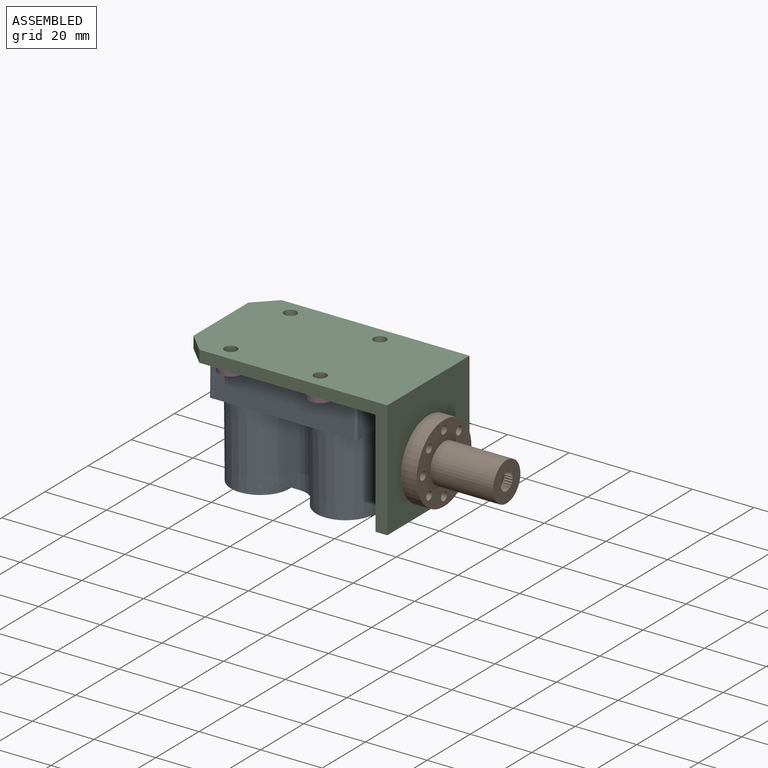
[diagram: assembled view]
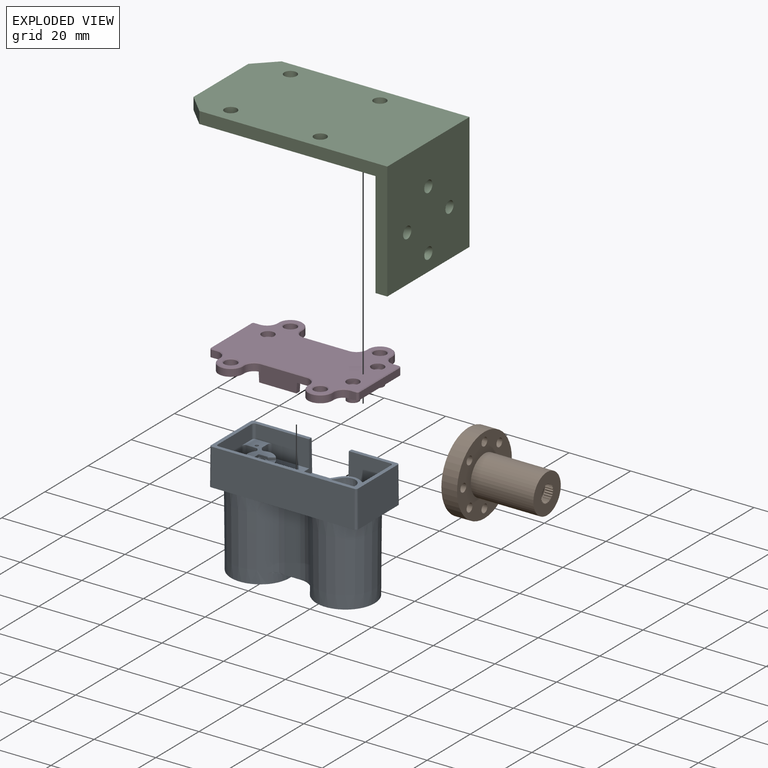
[diagram: exploded view]
GUIDED TOUR — MATED ASSEMBLY (Onshape document ed77f4d7c9192865d4ffb12d, AutoMate assembly ed77f4d7c9192865d4ffb12d_d418b81e3465ae56b3d276f0_4f85dbb0df56c0d508971a54_default)

This assembly has 4 components, labeled P0..P3 below (a component is one placed occurrence of a part; the same part can appear more than once), held together by 7 mates. A mate is a constraint between two components; its type names the relative motion it leaves free:
  CYLINDRICAL — leaves both rotation about and translation along the listed axis free,
  FASTENED — locks the two components together rigidly (no relative motion),
  PLANAR — leaves sliding in the plane through the listed point (normal = the listed direction) and rotation about that normal free.
Axis/direction vectors are unit vectors and 'through' points are millimeter coordinates, both in the assembly's world frame.

MATES
  1. PLANAR "Planar 1": P2 <-> P3, direction (0.000, 0.000, -1.000) through (-71.48, -67.20, 4.87) mm
  2. PLANAR "Planar 2": P1 <-> P2, direction (-1.000, 0.000, 0.000) through (-36.53, -67.20, -14.18) mm
  3. CYLINDRICAL "Cylindrical 1": P2 <-> P3, axis (0.000, 0.000, 1.000) through (-90.97, -81.02, 4.87) mm
  4. CYLINDRICAL "Cylindrical 2": P3 <-> P2, axis (0.000, 0.000, -1.000) through (-61.93, -53.38, 4.62) mm
  5. CYLINDRICAL "Cylindrical 4": P2 <-> P1, axis (1.000, 0.000, 0.000) through (-36.53, -67.20, -23.95) mm
  6. FASTENED "Fastened 1": P0 <-> P3, direction (0.000, 0.000, 1.000) through (-100.58, -67.20, 2.33) mm
  7. CYLINDRICAL "Cylindrical 3": P1 <-> P2, axis (-1.000, 0.000, 0.000) through (-36.53, -67.20, -4.40) mm

ASSEMBLY ORDER
  1. P3 — the base component [order verified]
  2. P2 [order verified]
  3. P0 [order verified]
  4. P1 [order verified]
Order-tag legend:
  [order verified] — this step's position reverses a verified removal order: the component was checked to insert without passing through the ones already placed.

Of the 4 components, 1 carries the full construction recipe — the FeatureScript program that regenerates the part's solid from scratch; the rest are supplied as boundary geometry only.
Each toured component is shown spotlighted twice — in the assembled view, then in the exploded view, where a leader line traces a displaced component back to its assembled socket (saturated green if recipe-attached, orange if geometry-only; every other component desaturated gray) — followed by its recipe or geometry summary and the mates that hold it.
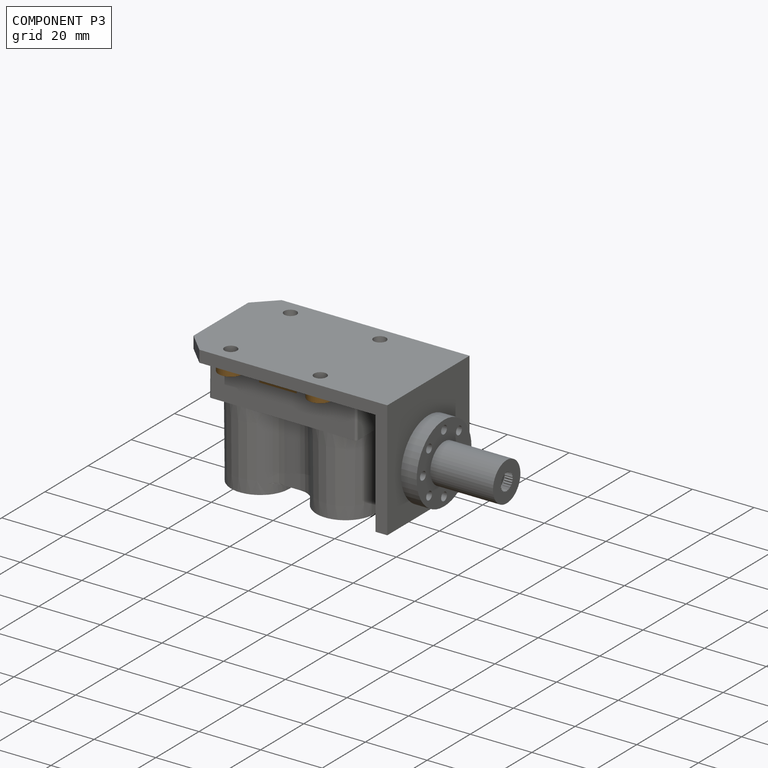
[diagram: component P3 — assembled]
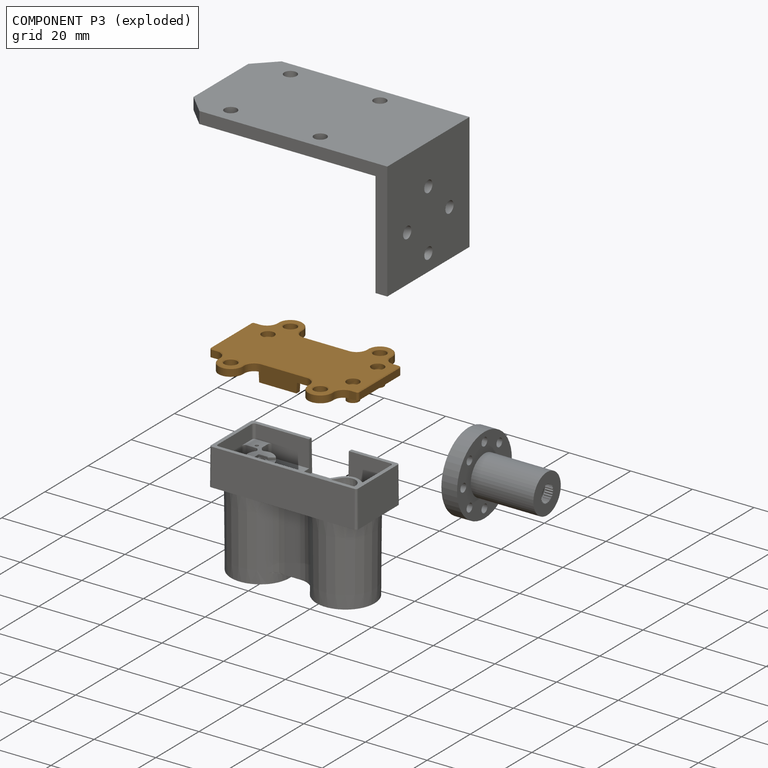
[diagram: component P3 — exploded]
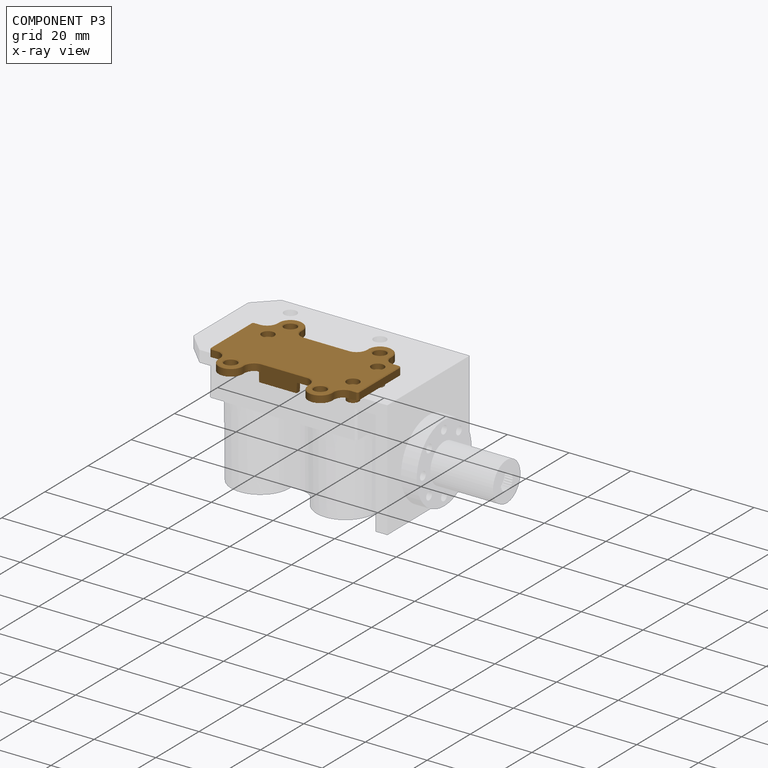
[diagram: component P3 — x-ray view]
COMPONENT P3 — geometry summary (no construction recipe available for this part):
  bounding box: 48.3 x 35.6 x 5.7 mm
  B-rep topology: 1 solid, 181 faces, 964 edges
  volume: 2464 mm^3 (25% of its bounding box)
Held by: PLANAR mate "Planar 1" to P2; CYLINDRICAL mate "Cylindrical 1" to P2; CYLINDRICAL mate "Cylindrical 2" to P2; FASTENED mate "Fastened 1" to P0.
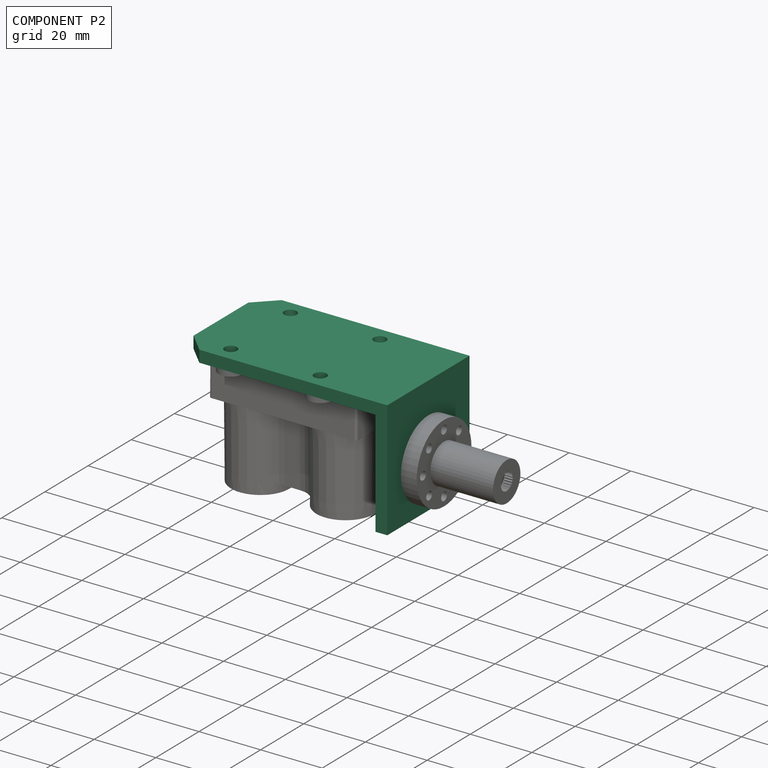
[diagram: component P2 — assembled]
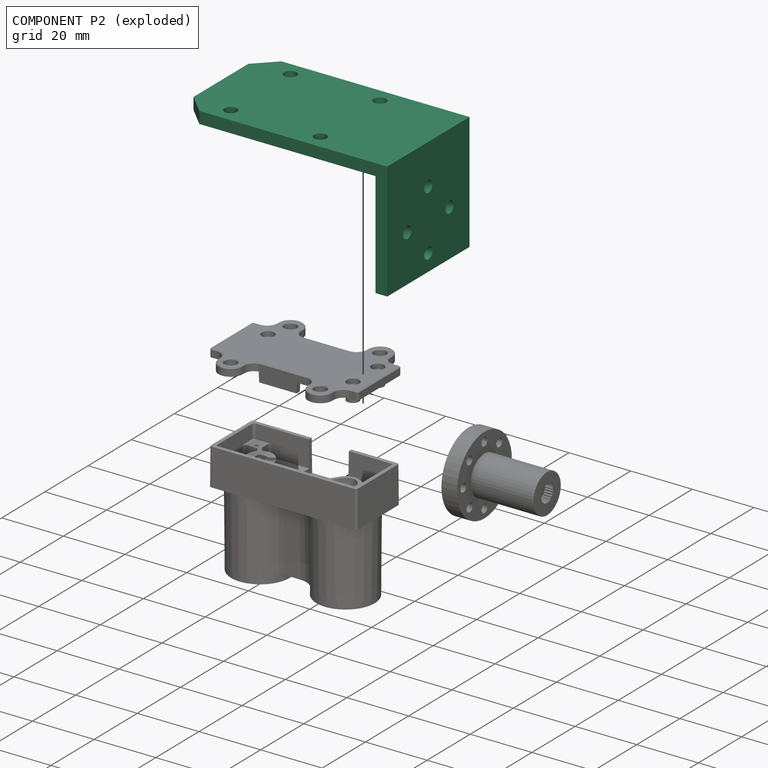
[diagram: component P2 — exploded]
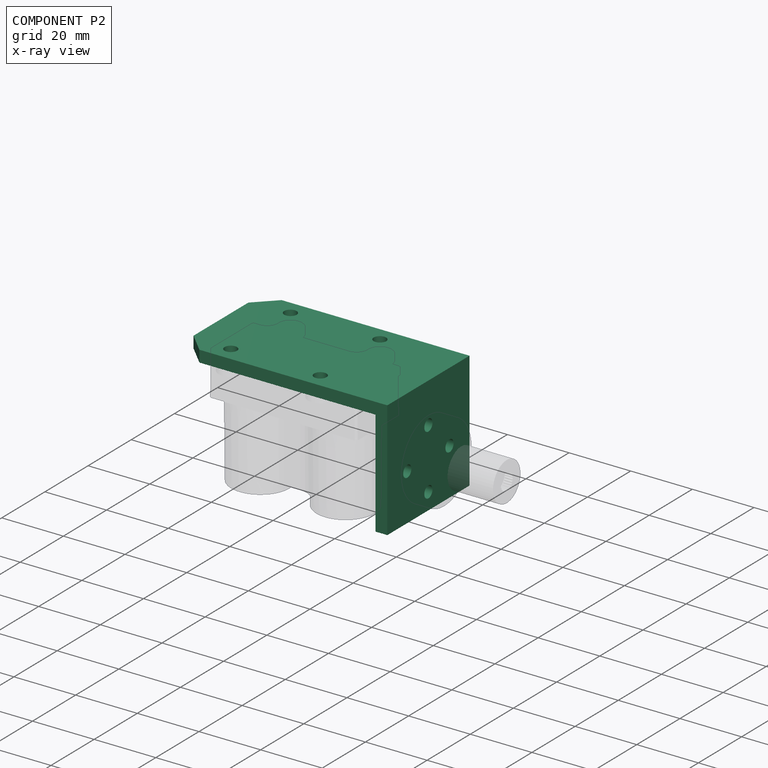
[diagram: component P2 — x-ray view]
COMPONENT P2 — recipe-attached (CADFS 00296645, mesh-verified: the recipe's output STEP matches this component's geometry to below the mesh-comparison resolution (tessellation chordal tolerance ~0.129 mm)).
Held by: PLANAR mate "Planar 1" to P3; PLANAR mate "Planar 2" to P1; CYLINDRICAL mate "Cylindrical 1" to P3; CYLINDRICAL mate "Cylindrical 2" to P3; CYLINDRICAL mate "Cylindrical 4" to P1; CYLINDRICAL mate "Cylindrical 3" to P1.
Construction recipe (FeatureScript — the CAD program that rebuilds this solid; sketch coordinates are in the units given by the * unit suffixes, e.g. mm):

FeatureScript 1511;
import(path : "onshape/std/geometry.fs", version : "1511.0");
import(path : "onshape/std/common.fs", version : "1511.0");
const mm = millimeter;
const VERTEX = EntityType.VERTEX;
const EDGE = EntityType.EDGE;
const FACE = EntityType.FACE;
const BODY = EntityType.BODY;
function v(x, y){return vector(x, y);}
function OD(order){return orderDisambiguation(order);}
function OSD(set){return originalSetDisambiguation(set);}
function TD(topology){return topologyDisambiguation(topology);}
function TDD(query){return trueDependencyDisambiguation(query);}
function sQuery(a, b, c) {return sketchEntityQuery(a, b, c);}

annotation { "Feature Type Name" : "Feature", "Feature Type Description" : "" }
export const myFeature = defineFeature(function(context is Context, id is Id, definition is map)
    precondition{}
    {
        {
            var Q0;
            Q0=qCreatedBy(makeId("Front.planeOp"),FACE);
            var sketch = newSketch(context, id + "F0", { "sketchPlane" : qUnion([Q0])});
            skLineSegment(sketch, "E0", {"start": v(0, 19.05) * mm, "end": v(-57.15, 19.05) * mm});
            skLineSegment(sketch, "E1", {"start": v(-57.15, 19.05) * mm, "end": v(-63.5, 12.7) * mm});
            skLineSegment(sketch, "E2", {"start": v(-63.5, 12.7) * mm, "end": v(-63.5, 0) * mm});
            skLineSegment(sketch, "E3.bottom", {"start": v(0, 19.05) * mm, "end": v(3.81, 19.05) * mm});
            skLineSegment(sketch, "E3.left", {"start": v(0, 19.05) * mm, "end": v(0, 0) * mm});
            skLineSegment(sketch, "E3.right", {"start": v(3.8, 19.05) * mm, "end": v(3.81, 0) * mm});
            skCircle(sketch, "E4", {"center": v(-50.62, 13.82) * mm, "radius": 2.02 * mm});
            skCircle(sketch, "E5", {"center": v(-21.59, 13.82) * mm, "radius": 2.02 * mm});
            skCircle(sketch, "E6.MirrorC", {"center": v(-21.59, -13.82) * mm, "radius": 2.02 * mm});
            skLineSegment(sketch, "E7.MirrorCS", {"start": v(-57.15, -19.05) * mm, "end": v(-63.5, -12.7) * mm});
            skCircle(sketch, "E8.MirrorC", {"center": v(-50.62, -13.82) * mm, "radius": 2.02 * mm});
            skLineSegment(sketch, "E9.MirrorCS", {"start": v(0, -19.05) * mm, "end": v(-57.15, -19.05) * mm});
            skLineSegment(sketch, "E10.MirrorCS", {"start": v(3.8, -19.05) * mm, "end": v(3.81, 0) * mm});
            skLineSegment(sketch, "E11.MirrorCS", {"start": v(0, -19.05) * mm, "end": v(3.81, -19.05) * mm});
            skLineSegment(sketch, "E12.MirrorCS", {"start": v(0, -19.05) * mm, "end": v(0, 0) * mm});
            skLineSegment(sketch, "E13.MirrorCS", {"start": v(-63.5, -12.7) * mm, "end": v(-63.5, 0) * mm});
            skSolve(sketch);
        }
        {
            var Q0;
            Q0=makeQuery(id+"F0.imprint","IMPRINT",FACE,{"disambiguationData":[TD([[makeQuery(id+"F0.imprint","IMPRINT",EDGE,{"derivedFrom":sQuery(id+"F0.wireOp",EDGE,"E0")}),1.0]])]});
            extrude(context, id + "F1", {"entities" : qUnion([Q0]), "depth" : 3.8 * mm});
        }
        {
            var Q0;
            Q0=makeQuery(id+"F0.imprint","IMPRINT",FACE,{"disambiguationData":[TD([[makeQuery(id+"F0.imprint","IMPRINT",EDGE,{"derivedFrom":sQuery(id+"F0.wireOp",EDGE,"E3.bottom")}),-1.0]])]});
            extrude(context, id + "F2", {"entities" : qUnion([Q0]), "operationType" : NewBodyOperationType.ADD, "depth" : 38.1 * mm});
        }
        {
            var Q0;
            Q0=makeQuery(id+"F2.opExtrude","SWEPT_FACE",FACE,{"disambiguationData":[OSD([sQuery(id+"F0.wireOp",EDGE,"E3.right"),sQuery(id+"F0.wireOp",EDGE,"E10.MirrorCS")])]});
            var sketch = newSketch(context, id + "F3", { "sketchPlane" : qUnion([Q0])});
            skPoint(sketch, "E14", {"position": v(-22.86, 0) * mm});
            skCircle(sketch, "E15", {"center": v(-22.86, 0) * mm, "radius": 9.78 * mm, "construction": true});
            skCircle(sketch, "E16", {"center": v(-22.86, 9.78) * mm, "radius": 1.9 * mm});
            skCircle(sketch, "E17.MirrorC", {"center": v(-22.86, -9.78) * mm, "radius": 1.9 * mm});
            skCircle(sketch, "E18", {"center": v(-32.64, 0) * mm, "radius": 1.9 * mm});
            skLineSegment(sketch, "E19", {"start": v(-22.86, 9.78) * mm, "end": v(-22.86, -9.78) * mm, "construction": true});
            skCircle(sketch, "E20.MirrorC", {"center": v(-13.08, 0) * mm, "radius": 1.9 * mm});
            skSolve(sketch);
        }
        {
            var Q0;
            Q0 = qSketchRegion(id + "F3", true);
            extrude(context, id + "F4", {"entities" : qUnion([Q0]), "operationType" : NewBodyOperationType.REMOVE, "endBound" : BoundingType.THROUGH_ALL, "oppositeDirection" : true, "depth" : 25.4 * mm});
        }
    });
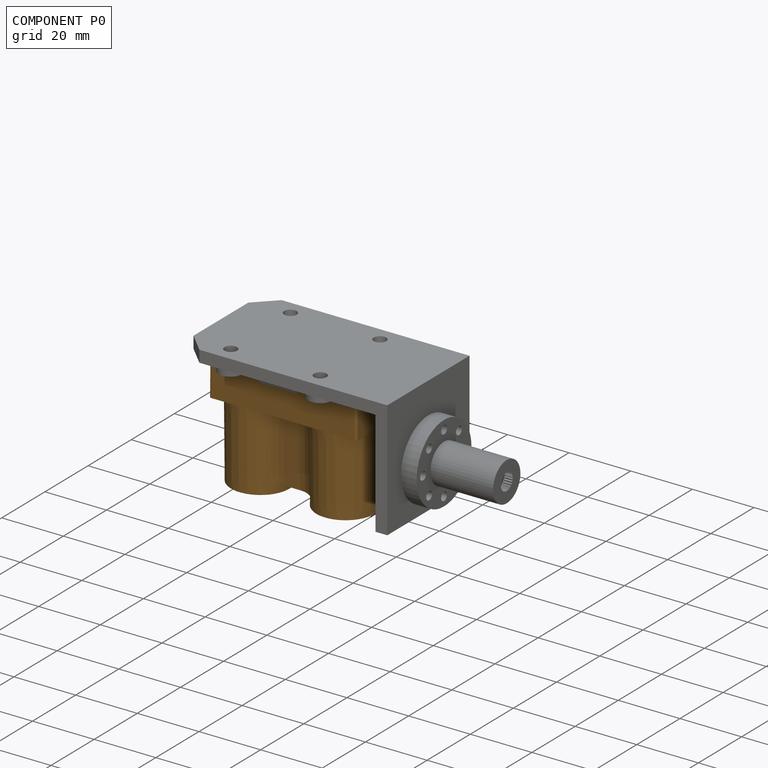
[diagram: component P0 — assembled]
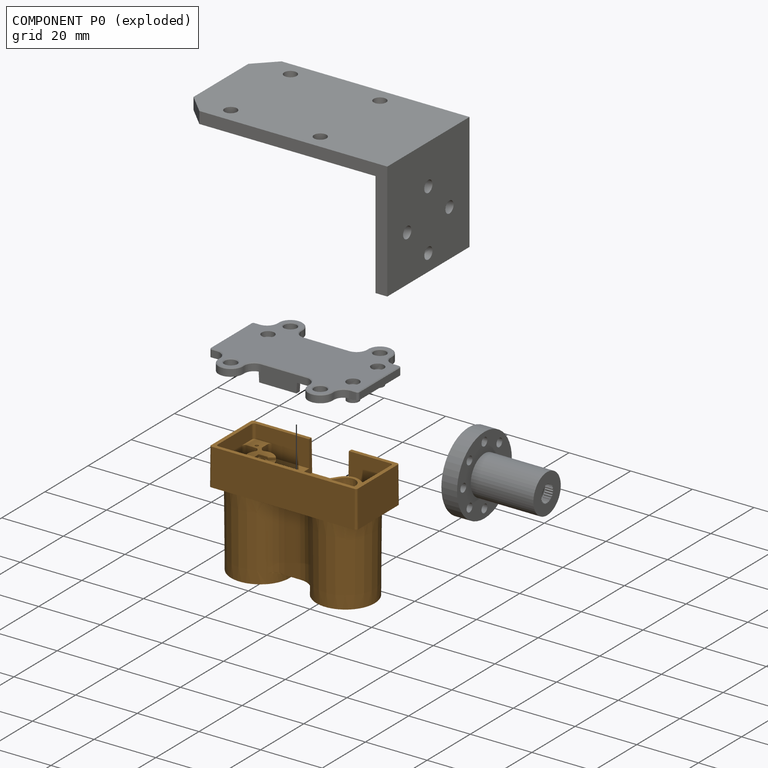
[diagram: component P0 — exploded]
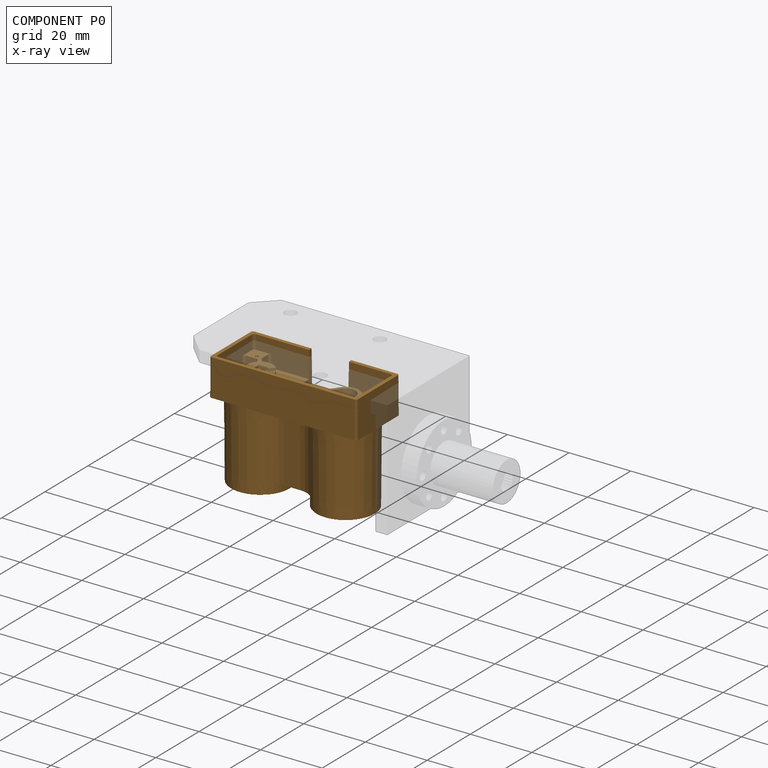
[diagram: component P0 — x-ray view]
COMPONENT P0 — geometry summary (no construction recipe available for this part):
  bounding box: 47.9 x 37.4 x 20.1 mm
  B-rep topology: 1 solid, 187 faces, 974 edges
  volume: 12783 mm^3 (36% of its bounding box)
Held by: FASTENED mate "Fastened 1" to P3.
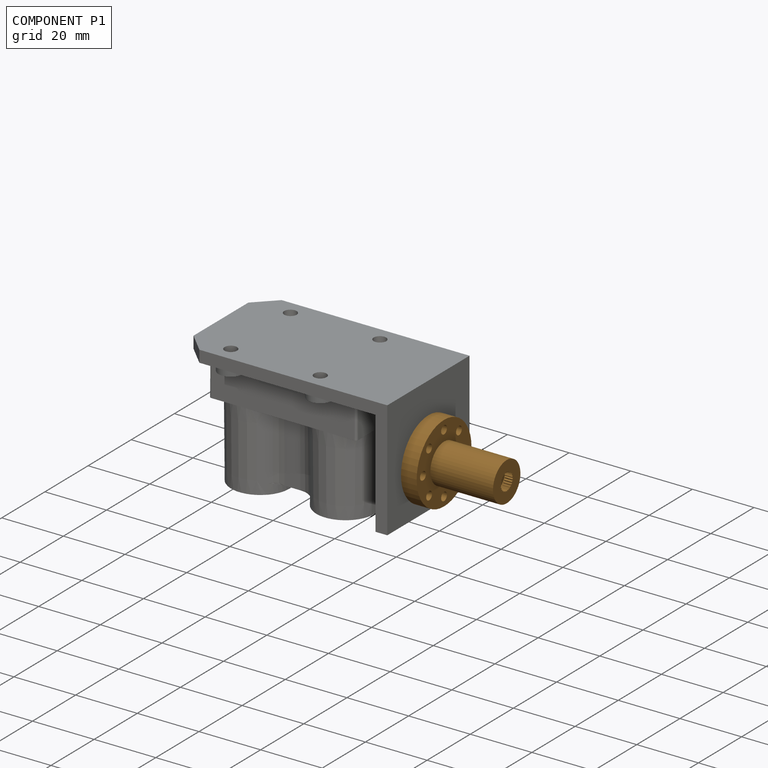
[diagram: component P1 — assembled]
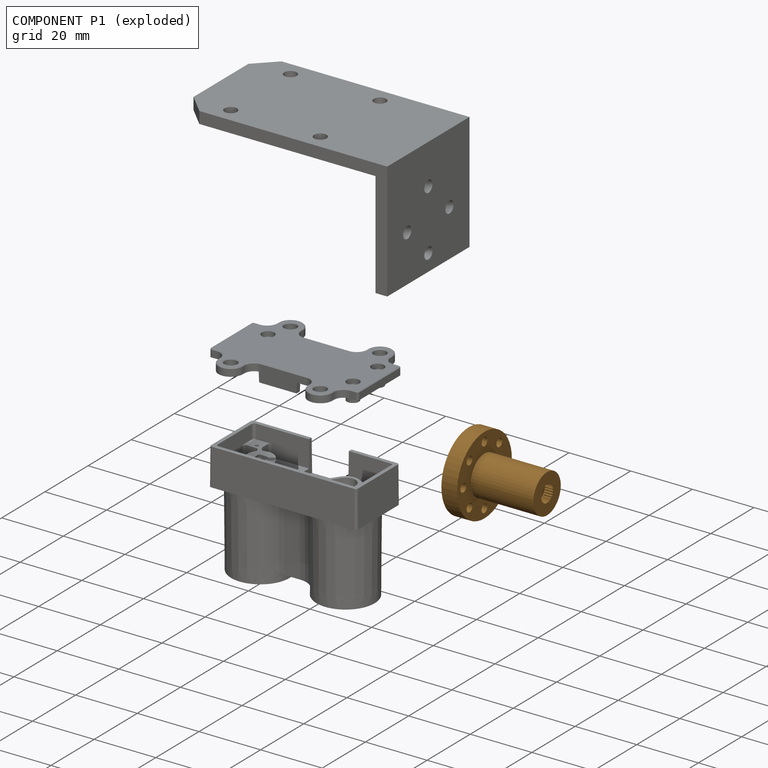
[diagram: component P1 — exploded]
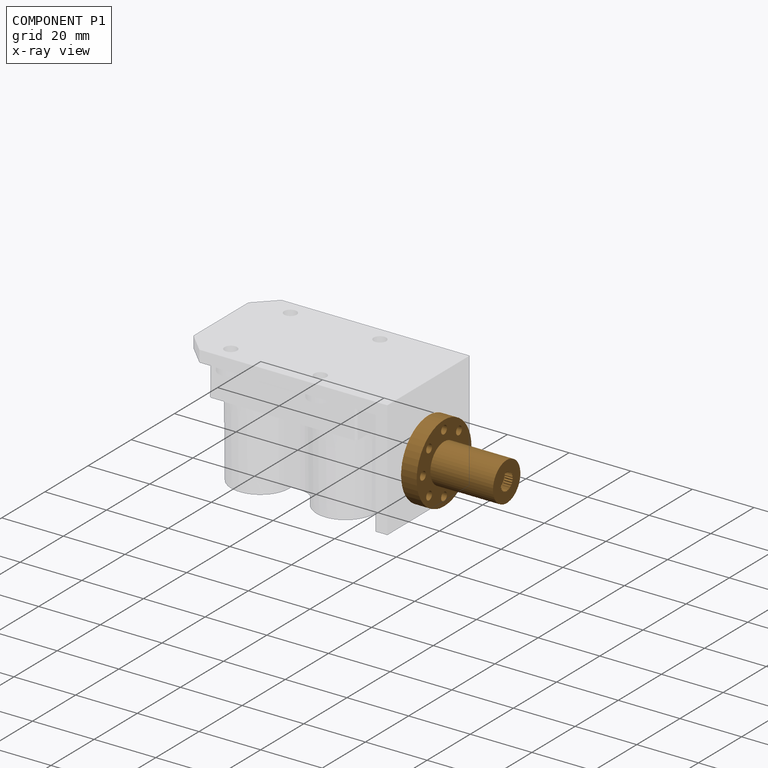
[diagram: component P1 — x-ray view]
COMPONENT P1 — geometry summary (no construction recipe available for this part):
  bounding box: 25.4 x 25.4 x 25.4 mm
  B-rep topology: 1 solid, 67 faces, 366 edges
  volume: 3864 mm^3 (24% of its bounding box)
  symmetry: 4-fold rotationally symmetric about the y axis; mirror-symmetric across its x mid-plane, z mid-plane
Held by: PLANAR mate "Planar 2" to P2; CYLINDRICAL mate "Cylindrical 4" to P2; CYLINDRICAL mate "Cylindrical 3" to P2.
PROVENANCE & LICENSES
Assembly (occurrences, transforms, mates, per-part STEP geometry): AutoMate dataset, Zenodo record 7776208, CC0.
Construction recipes: CADFS (HuggingFace VladPyatov/CADFS, CC-BY-4.0, layered over the ABC dataset), FeatureScript reconstruction programs keyed by ABC model id.
Join: ABC meta listings map ABC model id -> Onshape documentId; within a shared document, parts are matched by geometric signature (bounding-box dims + volume at 0.1% relative tolerance, exact B-rep face/solid counts).
Verification: 1 of this assembly's 4 components carries a recipe attachment, and every attachment is mesh-verified: the CADFS STEP and the AutoMate member STEP were compared as meshes in their shared local frame (symmetric sampled-point-to-mesh distance); worst across the 1 attachment: below the mesh-comparison resolution (tessellation chordal tolerance ~0.129 mm) on a 86 mm part.
Renders: orthographic iso camera (az 35 / el 25); the floor grid conveys scale (grid pitch printed in each image; no ruler). In the exploded view each component is displaced by its stored offset vector: the offsets alone carry the explosion direction (mate normal/axis signs are not orientation cues and do not encode it), and separation distances are assigned per mate-chain, not proportionally to assembly-order depth.
